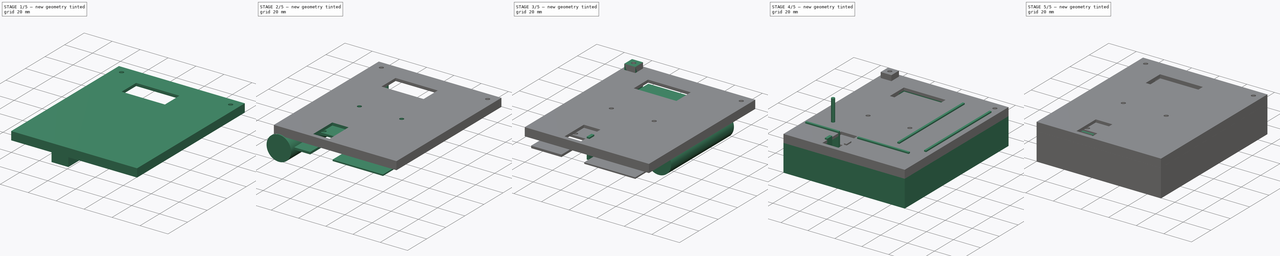
[diagram: build sequence overview — one tinted view per stage of 5, left to right]
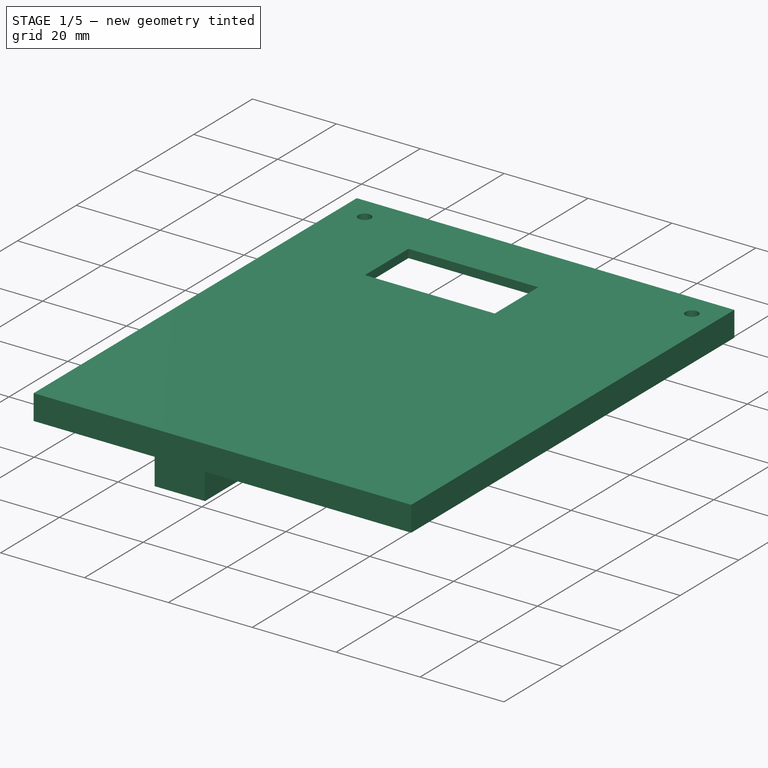
[diagram: stage 1 of 5 — iso view after this stage's code; geometry added in this stage tinted green]
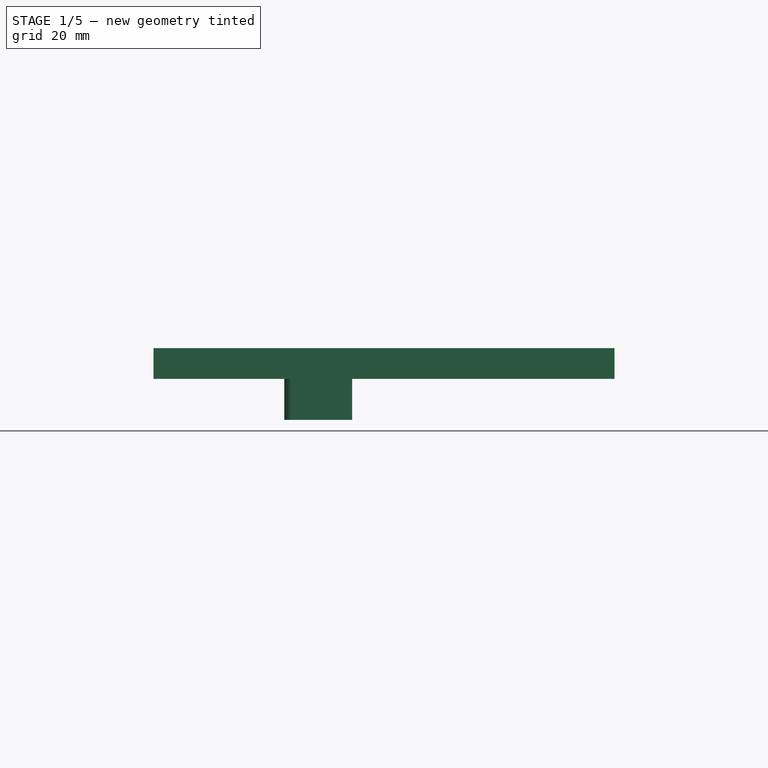
[diagram: stage 1 of 5 — front view after this stage's code; geometry added in this stage tinted green]
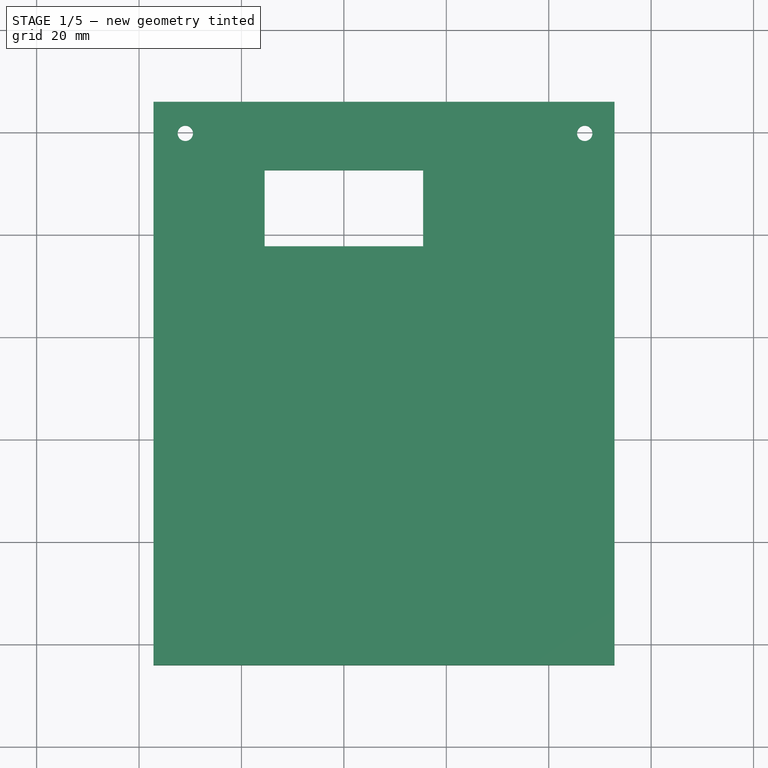
[diagram: stage 1 of 5 — top view after this stage's code; geometry added in this stage tinted green]
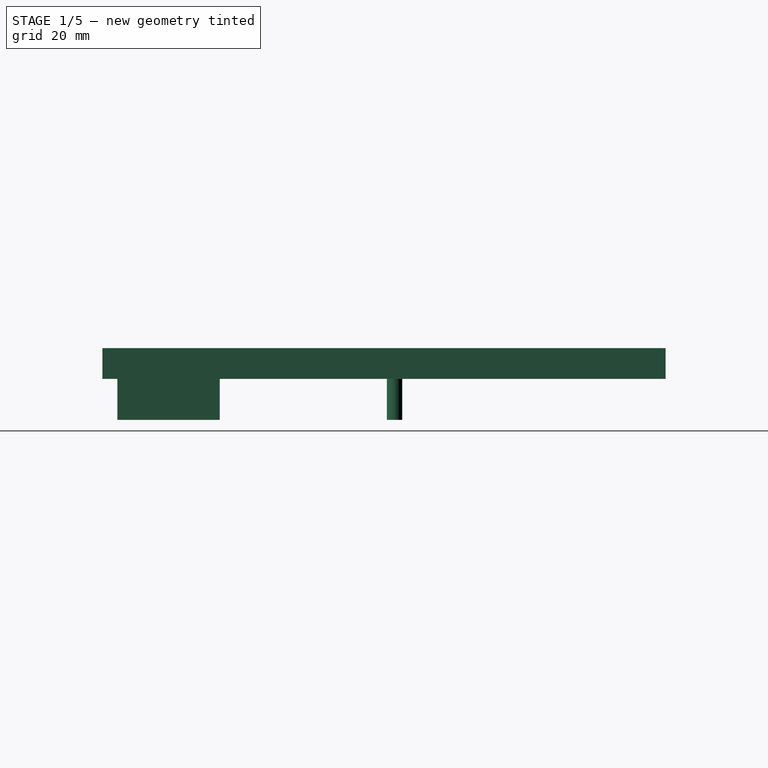
[diagram: stage 1 of 5 — right view after this stage's code; geometry added in this stage tinted green]
FCSTD DOCUMENT  (FreeCAD 0.18R4 (GitTag))
Label: BOX
License: All rights reserved
LicenseURL: http://en.wikipedia.org/wiki/All_rights_reserved
objects: Sketcher::SketchObject×34, PartDesign::Pad×33, PartDesign::Body×33, Part::Cut×17, Part::MultiFuse×4
note: 154 computed .brp shape members not serialized (recipe doc carries the construction recipe); baked Part::Feature solids carry a one-line shape summary decoded from their .brp

FEATURE [Sketcher::SketchObject] Sketch026
  MapMode = 5
  Support = -> [XY_Plane025]
  sketch-geometry (4):
    g0: LineSegment StartX=-37.1654 StartY=45.7931 StartZ=0 EndX=52.8346 EndY=45.7931 EndZ=0
    g1: LineSegment StartX=52.8346 StartY=45.7931 StartZ=0 EndX=52.8346 EndY=-64.2069 EndZ=0
    g2: LineSegment StartX=52.8346 StartY=-64.2069 StartZ=0 EndX=-37.1654 EndY=-64.2069 EndZ=0
    g3: LineSegment StartX=-37.1654 StartY=-64.2069 StartZ=0 EndX=-37.1654 EndY=45.7931 EndZ=0
  constraints (10):
    c: Coincident(g0,g1)
    c: Coincident(g1,g2)
    c: Coincident(g2,g3)
    c: Coincident(g3,g0)
    c: Horizontal(g0)
    c: Horizontal(g2)
    c: Vertical(g1)
    c: Vertical(g3)
    c: DistanceX(g0,g0) = 90
    c: DistanceY(g1,g1) = 110
FEATURE [PartDesign::Pad] Pad025
  Length = 6
  Length2 = 100
  Profile = -> Sketch026
  Type = 0
FEATURE [PartDesign::Body] Body025
  Group = -> [Sketch026,Pad025]
  Origin = -> Origin025
  Placement = pos=(0,0,8) rot=(0,0,1;0rad)
  Tip = -> Pad025
FEATURE [Sketcher::SketchObject] Sketch027
  MapMode = 5
  Support = -> [XY_Plane027]
  sketch-geometry (4):
    g0: LineSegment StartX=-34.9958 StartY=43.7386 StartZ=0 EndX=50.9967 EndY=43.7386 EndZ=0
    g1: LineSegment StartX=50.9967 StartY=43.7386 StartZ=0 EndX=50.9967 EndY=-62.2632 EndZ=0
    g2: LineSegment StartX=50.9967 StartY=-62.2632 StartZ=0 EndX=-34.9958 EndY=-62.2632 EndZ=0
    g3: LineSegment StartX=-34.9958 StartY=-62.2632 StartZ=0 EndX=-34.9958 EndY=43.7386 EndZ=0
  constraints (8):
    c: Coincident(g0,g1)
    c: Coincident(g1,g2)
    c: Coincident(g2,g3)
    c: Coincident(g3,g0)
    c: Horizontal(g0)
    c: Horizontal(g2)
    c: Vertical(g1)
    c: Vertical(g3)
FEATURE [PartDesign::Pad] Pad026
  Length = 4
  Length2 = 100
  Profile = -> Sketch027
  Type = 0
FEATURE [PartDesign::Body] Body027
  Group = -> [Sketch027,Pad026]
  Origin = -> Origin027
  Placement = pos=(0,0,8) rot=(0,0,1;0rad)
  Tip = -> Pad026
FEATURE [Part::Cut] Cut010
  Base = -> Body025
  Tool = -> Body027
FEATURE [Sketcher::SketchObject] Sketch028
  MapMode = 5
  Support = -> [XY_Plane028]
  sketch-geometry (4):
    g0: LineSegment StartX=-15.4676 StartY=32.4065 StartZ=0 EndX=15.4804 EndY=32.4065 EndZ=0
    g1: LineSegment StartX=15.4804 StartY=32.4065 StartZ=0 EndX=15.4804 EndY=17.5822 EndZ=0
    g2: LineSegment StartX=15.4804 StartY=17.5822 StartZ=0 EndX=-15.4676 EndY=17.5822 EndZ=0
    g3: LineSegment StartX=-15.4676 StartY=17.5822 StartZ=0 EndX=-15.4676 EndY=32.4065 EndZ=0
  constraints (8):
    c: Coincident(g0,g1)
    c: Coincident(g1,g2)
    c: Coincident(g2,g3)
    c: Coincident(g3,g0)
    c: Horizontal(g0)
    c: Horizontal(g2)
    c: Vertical(g1)
    c: Vertical(g3)
FEATURE [PartDesign::Pad] Pad027
  Length = 10
  Length2 = 100
  Profile = -> Sketch028
  Type = 0
FEATURE [PartDesign::Body] Body028
  Group = -> [Sketch028,Pad027]
  Origin = -> Origin028
  Placement = pos=(0,0,7) rot=(0,0,1;0rad)
  Tip = -> Pad027
FEATURE [Part::Cut] Cut011
  Base = -> Cut010
  Tool = -> Body028
FEATURE [Sketcher::SketchObject] Sketch029
  MapMode = 5
  Support = -> [XY_Plane029]
  sketch-geometry (1):
    g0: Circle CenterX=-30.9647 CenterY=39.629 CenterZ=0 NormalX=0 NormalY=0 NormalZ=1 AngleXU=0 Radius=1.5
  constraints (1):
    c: Radius(g0) = 1.5
FEATURE [PartDesign::Pad] Pad028
  Length = 10
  Length2 = 100
  Profile = -> Sketch029
  Type = 0
FEATURE [PartDesign::Body] Body029
  Group = -> [Sketch029,Pad028]
  Origin = -> Origin029
  Placement = pos=(78,0,7) rot=(0,0,1;0rad)
  Tip = -> Pad028
FEATURE [Sketcher::SketchObject] Sketch030
  MapMode = 5
  Support = -> [XY_Plane030]
  sketch-geometry (1):
    g0: Circle CenterX=-30.9647 CenterY=39.629 CenterZ=0 NormalX=0 NormalY=0 NormalZ=1 AngleXU=0 Radius=1.5
  constraints (1):
    c: Radius(g0) = 1.5
FEATURE [PartDesign::Pad] Pad029
  Length = 10
  Length2 = 100
  Profile = -> Sketch030
  Type = 0
FEATURE [PartDesign::Body] Body030
  Group = -> [Sketch030,Pad029]
  Origin = -> Origin030
  Placement = pos=(0,0,7) rot=(0,0,1;0rad)
  Tip = -> Pad029
FEATURE [Part::Cut] Cut012
  Base = -> Cut011
  Tool = -> Body029
FEATURE [Part::Cut] Cut013
  Base = -> Cut012
  Tool = -> Body030
FEATURE [Sketcher::SketchObject] Sketch031
  MapMode = 5
  Support = -> [XY_Plane031]
  sketch-geometry (4):
    g0: LineSegment StartX=-10.3775 StartY=-41.2712 StartZ=0 EndX=1.62254 EndY=-41.2712 EndZ=0
    g1: LineSegment StartX=1.62254 StartY=-41.2712 StartZ=0 EndX=1.62254 EndY=-61.2712 EndZ=0
    g2: LineSegment StartX=1.62254 StartY=-61.2712 StartZ=0 EndX=-10.3775 EndY=-61.2712 EndZ=0
    g3: LineSegment StartX=-10.3775 StartY=-61.2712 StartZ=0 EndX=-10.3775 EndY=-41.2712 EndZ=0
  constraints (10):
    c: Coincident(g0,g1)
    c: Coincident(g1,g2)
    c: Coincident(g2,g3)
    c: Coincident(g3,g0)
    c: Horizontal(g0)
    c: Horizontal(g2)
    c: Vertical(g1)
    c: Vertical(g3)
    c: DistanceX(g0,g0) = 12
    c: DistanceY(g1,g1) = 20
FEATURE [PartDesign::Pad] Pad030
  Length = 10
  Length2 = 100
  Profile = -> Sketch031
  Type = 0
FEATURE [Sketcher::SketchObject] Sketch032
  MapMode = 5
  Support = -> [XY_Plane032]
  sketch-geometry (1):
    g0: Circle CenterX=-10.1326 CenterY=-7.13405 CenterZ=0 NormalX=0 NormalY=0 NormalZ=1 AngleXU=0 Radius=1.5
  constraints (1):
    c: Diameter(g0) = 3
FEATURE [PartDesign::Pad] Pad031
  Length = 10
  Length2 = 100
  Profile = -> Sketch032
  Type = 0
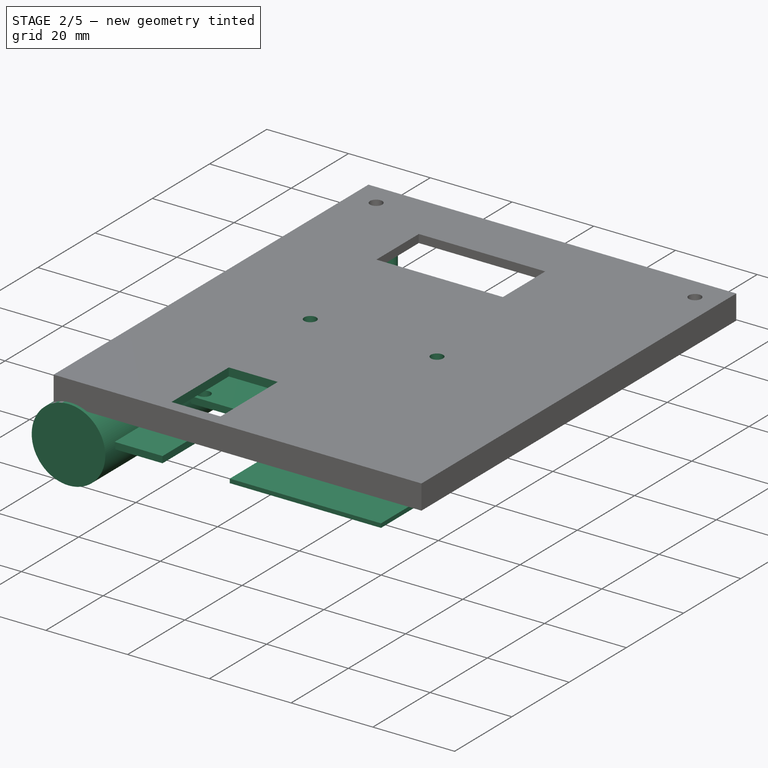
[diagram: stage 2 of 5 — iso view after this stage's code; geometry added in this stage tinted green]
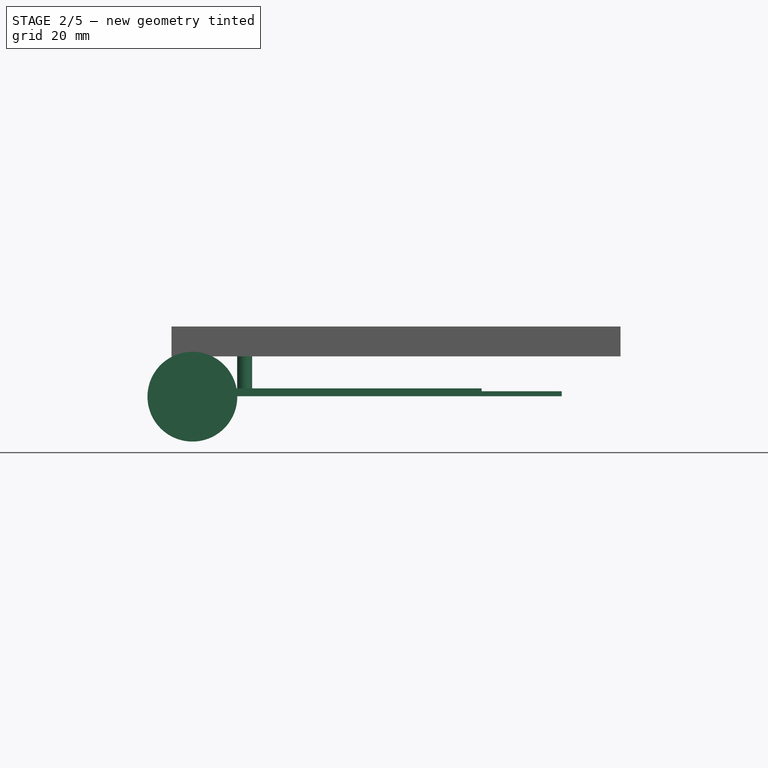
[diagram: stage 2 of 5 — front view after this stage's code; geometry added in this stage tinted green]
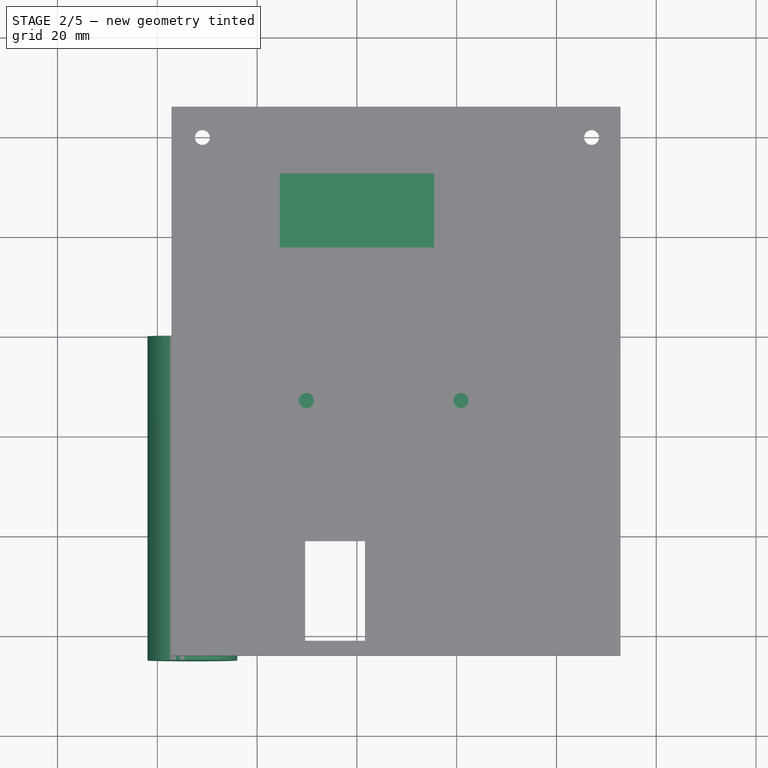
[diagram: stage 2 of 5 — top view after this stage's code; geometry added in this stage tinted green]
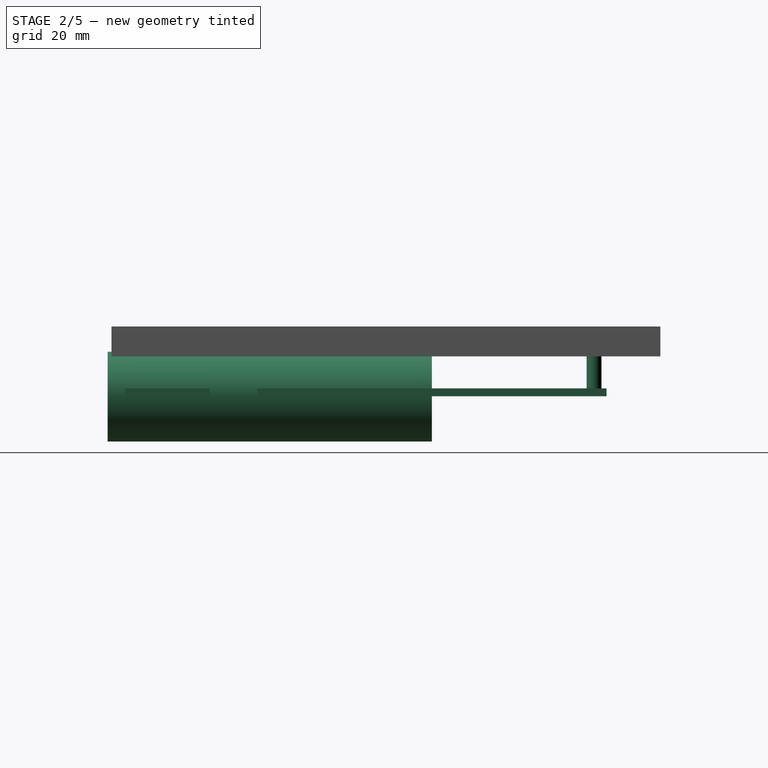
[diagram: stage 2 of 5 — right view after this stage's code; geometry added in this stage tinted green]
FEATURE [Sketcher::SketchObject] Sketch
  MapMode = 5
  Support = -> [XY_Plane]
  sketch-geometry (4):
    g0: LineSegment StartX=-25 StartY=35 StartZ=0 EndX=25 EndY=35 EndZ=0
    g1: LineSegment StartX=25 StartY=35 StartZ=0 EndX=25 EndY=-35 EndZ=0
    g2: LineSegment StartX=25 StartY=-35 StartZ=0 EndX=-25 EndY=-35 EndZ=0
    g3: LineSegment StartX=-25 StartY=-35 StartZ=0 EndX=-25 EndY=35 EndZ=0
  constraints (10):
    c: Coincident(g0,g1)
    c: Coincident(g1,g2)
    c: Coincident(g2,g3)
    c: Coincident(g3,g0)
    c: Horizontal(g2)
    c: Vertical(g3)
    c: DistanceX(g0,g0) = 50
    c: DistanceY(g1,g1) = 70
    c: Symmetric(g0,g0,g-2)
    c: Symmetric(g0,g1,g-1)
FEATURE [PartDesign::Pad] Pad
  Length = 1.6
  Length2 = 100
  Profile = -> Sketch
  Type = 0
FEATURE [PartDesign::Body] Body001  label="7seg"
  Group = -> [Sketch001,Pad001]
  Origin = -> Origin001
  Placement = pos=(0,0,1.6) rot=(0,0,1;0rad)
  Tip = -> Pad001
FEATURE [Sketcher::SketchObject] Sketch002
  MapMode = 5
  Support = -> [XY_Plane002]
  sketch-geometry (1):
    g0: Circle CenterX=-22.5 CenterY=32.5 CenterZ=0 NormalX=0 NormalY=0 NormalZ=1 AngleXU=0 Radius=1.5
  constraints (3):
    c: Diameter(g0) = 3
    c: DistanceX(g0,g-1) = 22.5
    c: DistanceY(g-1,g0) = 32.5
FEATURE [Sketcher::SketchObject] Sketch003
  MapMode = 5
  Support = -> [XY_Plane003]
  sketch-geometry (1):
    g0: Circle CenterX=-22.5 CenterY=32.5 CenterZ=0 NormalX=0 NormalY=0 NormalZ=1 AngleXU=0 Radius=1.5
  constraints (3):
    c: Diameter(g0) = 3
    c: DistanceX(g0,g-1) = 22.5
    c: DistanceY(g-1,g0) = 32.5
FEATURE [Sketcher::SketchObject] Sketch004
  MapMode = 5
  Support = -> [XY_Plane004]
  sketch-geometry (1):
    g0: Circle CenterX=-22.5 CenterY=32.5 CenterZ=0 NormalX=0 NormalY=0 NormalZ=1 AngleXU=0 Radius=1.5
  constraints (3):
    c: Diameter(g0) = 3
    c: DistanceX(g0,g-1) = 22.5
    c: DistanceY(g-1,g0) = 32.5
FEATURE [PartDesign::Pad] Pad002
  Length = 10
  Length2 = 100
  Profile = -> Sketch002
  Type = 0
FEATURE [PartDesign::Body] Body002
  Group = -> [Sketch002,Pad002]
  Origin = -> Origin002
  Placement = pos=(0,-65,0) rot=(0,0,1;0rad)
  Tip = -> Pad002
FEATURE [Sketcher::SketchObject] Sketch005
  MapMode = 5
  Support = -> [XY_Plane005]
  sketch-geometry (1):
    g0: Circle CenterX=-22.5 CenterY=32.5 CenterZ=0 NormalX=0 NormalY=0 NormalZ=1 AngleXU=0 Radius=1.5
  constraints (3):
    c: Diameter(g0) = 3
    c: DistanceX(g0,g-1) = 22.5
    c: DistanceY(g-1,g0) = 32.5
FEATURE [PartDesign::Pad] Pad003
  Length = 10
  Length2 = 100
  Profile = -> Sketch005
  Type = 0
FEATURE [PartDesign::Body] Body004
  Group = -> [Sketch004,Pad005]
  Origin = -> Origin004
  Tip = -> Pad005
FEATURE [Part::Cut] Cut
  Base = -> Body
  Tool = -> Body002
FEATURE [Sketcher::SketchObject] Sketch006
  MapMode = 5
  Placement = pos=(0,0,0) rot=(1,0,0;1.5708rad)
  Support = -> [XZ_Plane006]
  sketch-geometry (1):
    g0: Circle CenterX=-32.9727 CenterY=-0.072947 CenterZ=0 NormalX=0 NormalY=0 NormalZ=1 AngleXU=0 Radius=9
  constraints (1):
    c: Diameter(g0) = 18
FEATURE [PartDesign::Pad] Pad006
  Length = 65
  Length2 = 100
  Placement = pos=(0,0,0) rot=(1,0,0;1.5708rad)
  Profile = -> Sketch006
  Type = 0
FEATURE [PartDesign::Body] Body006  label="18650"
  Group = -> [Sketch006,Pad006]
  Origin = -> Origin006
  Placement = pos=(71,32,0) rot=(0,0,1;0rad)
  Tip = -> Pad006
FEATURE [Sketcher::SketchObject] Sketch007
  MapMode = 5
  Support = -> [XY_Plane007]
  sketch-geometry (4):
    g0: LineSegment StartX=-37.1546 StartY=45.7807 StartZ=0 EndX=52.8454 EndY=45.7807 EndZ=0
    g1: LineSegment StartX=52.8454 StartY=45.7807 StartZ=0 EndX=52.8454 EndY=-64.2193 EndZ=0
    g2: LineSegment StartX=52.8454 StartY=-64.2193 StartZ=0 EndX=-37.1546 EndY=-64.2193 EndZ=0
    g3: LineSegment StartX=-37.1546 StartY=-64.2193 StartZ=0 EndX=-37.1546 EndY=45.7807 EndZ=0
  constraints (10):
    c: Coincident(g0,g1)
    c: Coincident(g1,g2)
    c: Coincident(g2,g3)
    c: Coincident(g3,g0)
    c: Horizontal(g0)
    c: Horizontal(g2)
    c: Vertical(g1)
    c: Vertical(g3)
    c: DistanceY(g1,g1) = 110
    c: DistanceX(g0,g0) = 90
FEATURE [Sketcher::SketchObject] Sketch008
  MapMode = 5
  Support = -> [XY_Plane008]
  sketch-geometry (4):
    g0: LineSegment StartX=-34.3892 StartY=-44.5297 StartZ=0 EndX=-12.3892 EndY=-44.5297 EndZ=0
    g1: LineSegment StartX=-12.3892 StartY=-44.5297 StartZ=0 EndX=-12.3892 EndY=-61.5297 EndZ=0
    g2: LineSegment StartX=-12.3892 StartY=-61.5297 StartZ=0 EndX=-34.3892 EndY=-61.5297 EndZ=0
    g3: LineSegment StartX=-34.3892 StartY=-61.5297 StartZ=0 EndX=-34.3892 EndY=-44.5297 EndZ=0
  constraints (10):
    c: Coincident(g0,g1)
    c: Coincident(g1,g2)
    c: Coincident(g2,g3)
    c: Coincident(g3,g0)
    c: Horizontal(g0)
    c: Horizontal(g2)
    c: Vertical(g1)
    c: Vertical(g3)
    c: DistanceX(g0,g0) = 22
    c: DistanceY(g1,g1) = 17
FEATURE [PartDesign::Pad] Pad007
  Length = 1.6
  Length2 = 100
  Profile = -> Sketch008
  Type = 0
FEATURE [PartDesign::Body] Body008  label="i1"
  Group = -> [Sketch008,Pad007]
  Origin = -> Origin008
  Tip = -> Pad007
FEATURE [Sketcher::SketchObject] Sketch009
  MapMode = 5
  Support = -> [XY_Plane009]
  sketch-geometry (4):
    g0: LineSegment StartX=4.0497 StartY=-44.5219 StartZ=0 EndX=41.0497 EndY=-44.5219 EndZ=0
    g1: LineSegment StartX=41.0497 StartY=-44.5219 StartZ=0 EndX=41.0497 EndY=-61.5219 EndZ=0
    g2: LineSegment StartX=41.0497 StartY=-61.5219 StartZ=0 EndX=4.0497 EndY=-61.5219 EndZ=0
    g3: LineSegment StartX=4.0497 StartY=-61.5219 StartZ=0 EndX=4.0497 EndY=-44.5219 EndZ=0
  constraints (10):
    c: Coincident(g0,g1)
    c: Coincident(g1,g2)
    c: Coincident(g2,g3)
    c: Coincident(g3,g0)
    c: Horizontal(g0)
    c: Horizontal(g2)
    c: Vertical(g1)
    c: Vertical(g3)
    c: DistanceX(g0,g0) = 37
    c: DistanceY(g1,g1) = 17
FEATURE [PartDesign::Pad] Pad008
  Length = 1
  Length2 = 100
  Profile = -> Sketch009
  Type = 0
FEATURE [PartDesign::Body] Body031
  Group = -> [Sketch031,Pad030]
  Origin = -> Origin031
  Placement = pos=(0,0,6) rot=(0,0,1;0rad)
  Tip = -> Pad030
FEATURE [Part::Cut] Cut014
  Base = -> Cut013
  Tool = -> Body031
FEATURE [PartDesign::Body] Body032
  Group = -> [Sketch032,Pad031]
  Origin = -> Origin032
  Placement = pos=(0,-6,6) rot=(0,0,1;0rad)
  Tip = -> Pad031
FEATURE [Sketcher::SketchObject] Sketch033
  MapMode = 5
  Support = -> [XY_Plane033]
  sketch-geometry (1):
    g0: Circle CenterX=-10.1326 CenterY=-7.13405 CenterZ=0 NormalX=0 NormalY=0 NormalZ=1 AngleXU=0 Radius=1.5
  constraints (1):
    c: Diameter(g0) = 3
FEATURE [PartDesign::Pad] Pad032
  Length = 10
  Length2 = 100
  Profile = -> Sketch033
  Type = 0
FEATURE [PartDesign::Body] Body033
  Group = -> [Sketch033,Pad032]
  Origin = -> Origin033
  Placement = pos=(31,-6,6) rot=(0,0,1;0rad)
  Tip = -> Pad032
FEATURE [Part::Cut] Cut015
  Base = -> Cut014
  Tool = -> Body032
FEATURE [Part::Cut] Cut016
  Base = -> Cut015
  Tool = -> Body033
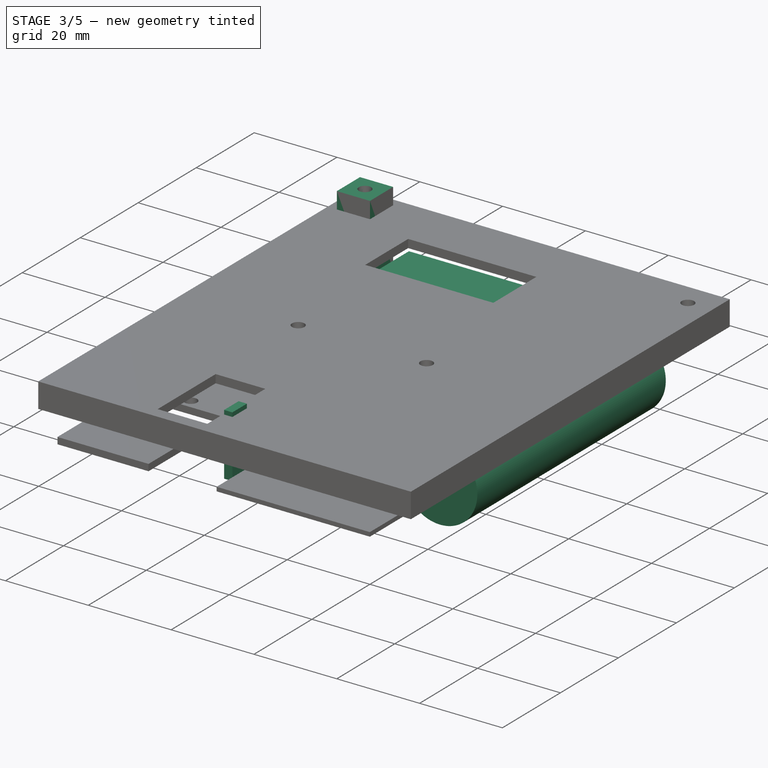
[diagram: stage 3 of 5 — iso view after this stage's code; geometry added in this stage tinted green]
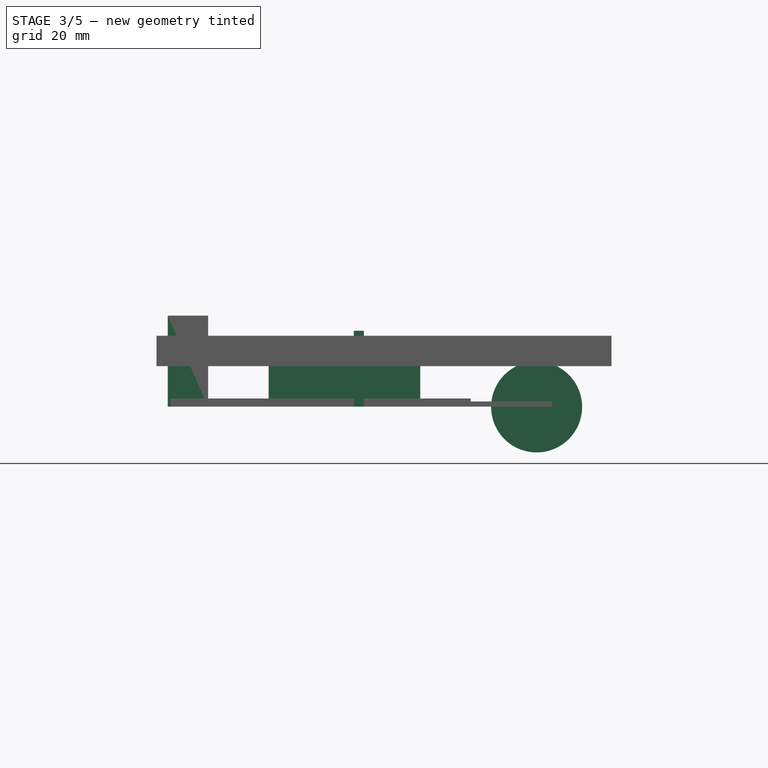
[diagram: stage 3 of 5 — front view after this stage's code; geometry added in this stage tinted green]
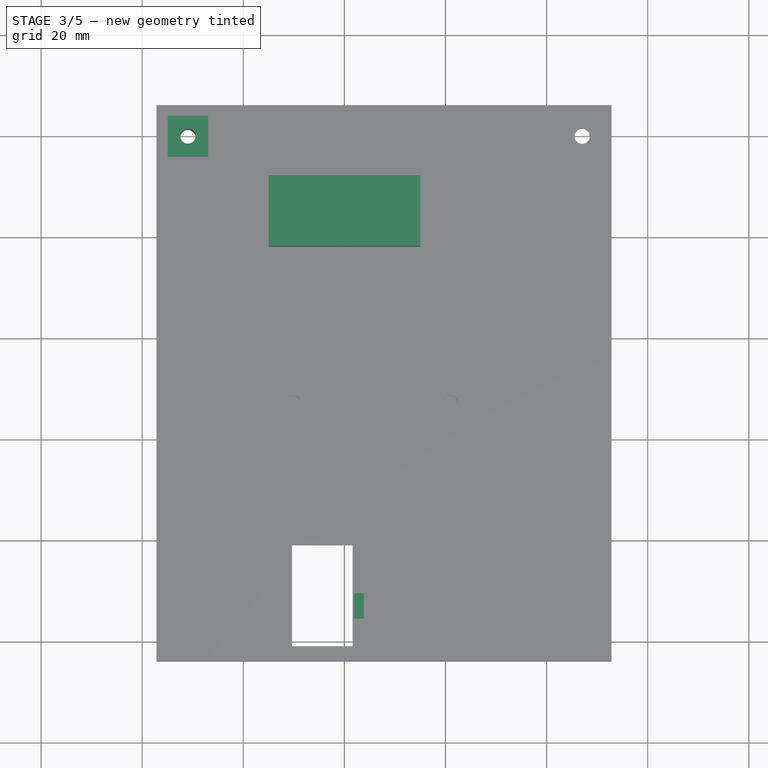
[diagram: stage 3 of 5 — top view after this stage's code; geometry added in this stage tinted green]
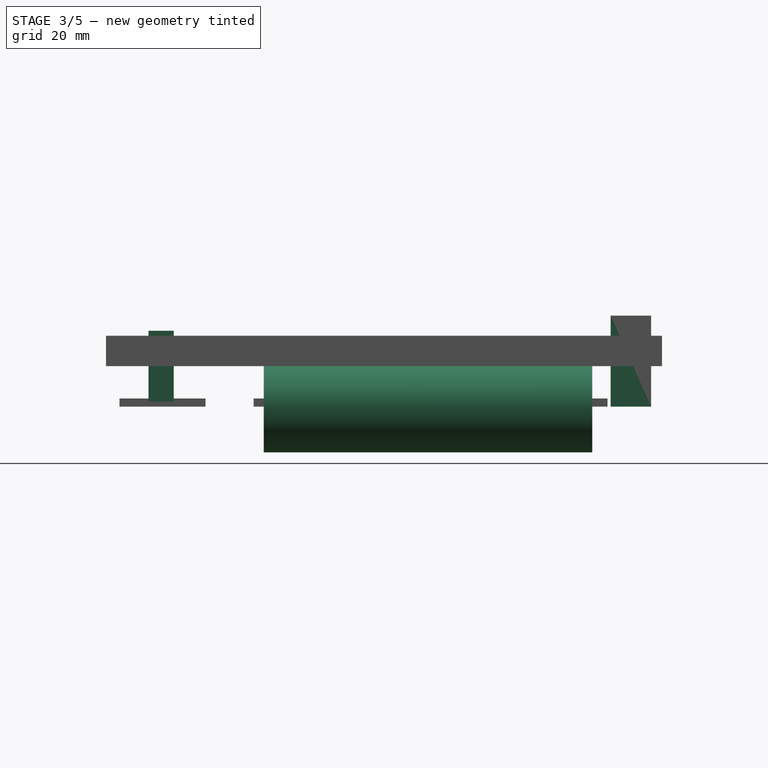
[diagram: stage 3 of 5 — right view after this stage's code; geometry added in this stage tinted green]
FEATURE [PartDesign::Body] Body  label="PCB"
  Group = -> [Sketch,Pad]
  Origin = -> Origin
  Tip = -> Pad
FEATURE [Sketcher::SketchObject] Sketch001
  MapMode = 5
  Support = -> [XY_Plane001]
  sketch-geometry (4):
    g0: LineSegment StartX=-15 StartY=32 StartZ=0 EndX=15 EndY=32 EndZ=0
    g1: LineSegment StartX=15 StartY=32 StartZ=0 EndX=15 EndY=18 EndZ=0
    g2: LineSegment StartX=15 StartY=18 StartZ=0 EndX=-15 EndY=18 EndZ=0
    g3: LineSegment StartX=-15 StartY=18 StartZ=0 EndX=-15 EndY=32 EndZ=0
  constraints (11):
    c: Coincident(g0,g1)
    c: Coincident(g1,g2)
    c: Coincident(g2,g3)
    c: Coincident(g3,g0)
    c: Horizontal(g2)
    c: Vertical(g1)
    c: Vertical(g3)
    c: DistanceX(g0,g0) = 30
    c: DistanceY(g1,g1) = 14
    c: Symmetric(g0,g0,g-2)
    c: DistanceY(g-1,g1) = 18
FEATURE [PartDesign::Pad] Pad001
  Length = 10
  Length2 = 100
  Profile = -> Sketch001
  Type = 0
FEATURE [PartDesign::Body] Body005
  Group = -> [Sketch005,Pad003]
  Origin = -> Origin005
  Placement = pos=(45,-65,0) rot=(0,0,1;0rad)
  Tip = -> Pad003
FEATURE [PartDesign::Pad] Pad004
  Length = 10
  Length2 = 100
  Profile = -> Sketch003
  Type = 0
FEATURE [PartDesign::Body] Body003
  Group = -> [Sketch003,Pad004]
  Origin = -> Origin003
  Placement = pos=(45,0,0) rot=(0,0,1;0rad)
  Tip = -> Pad004
FEATURE [PartDesign::Pad] Pad005
  Length = 10
  Length2 = 100
  Profile = -> Sketch004
  Type = 0
FEATURE [Part::Cut] Cut001
  Base = -> Cut
  Tool = -> Body005
FEATURE [Part::Cut] Cut002
  Base = -> Cut001
  Tool = -> Body004
FEATURE [Part::Cut] Cut003  label="PCBH"
  Base = -> Cut002
  Tool = -> Body003
FEATURE [PartDesign::Body] Body019
  Group = -> [Sketch020,Pad019]
  Origin = -> Origin019
  Placement = pos=(0,0,-10) rot=(0,0,1;0rad)
  Tip = -> Pad019
FEATURE [Sketcher::SketchObject] Sketch021
  MapMode = 5
  Support = -> [XY_Plane020]
  sketch-geometry (4):
    g0: LineSegment StartX=1.84609 StartY=-50.8047 StartZ=0 EndX=3.84609 EndY=-50.8047 EndZ=0
    g1: LineSegment StartX=3.84609 StartY=-50.8047 StartZ=0 EndX=3.84609 EndY=-55.8047 EndZ=0
    g2: LineSegment StartX=3.84609 StartY=-55.8047 StartZ=0 EndX=1.84609 EndY=-55.8047 EndZ=0
    g3: LineSegment StartX=1.84609 StartY=-55.8047 StartZ=0 EndX=1.84609 EndY=-50.8047 EndZ=0
  constraints (10):
    c: Coincident(g0,g1)
    c: Coincident(g1,g2)
    c: Coincident(g2,g3)
    c: Coincident(g3,g0)
    c: Horizontal(g0)
    c: Horizontal(g2)
    c: Vertical(g1)
    c: Vertical(g3)
    c: DistanceY(g1,g1) = 5
    c: DistanceX(g0,g0) = 2
FEATURE [PartDesign::Pad] Pad020
  Length = 15
  Length2 = 100
  Profile = -> Sketch021
  Type = 0
FEATURE [Sketcher::SketchObject] Sketch024
  MapMode = 5
  Support = -> [XY_Plane023]
  sketch-geometry (5):
    g0: Circle CenterX=-30.9518 CenterY=39.627 CenterZ=0 NormalX=0 NormalY=0 NormalZ=1 AngleXU=0 Radius=1.5
    g1: LineSegment StartX=-34.9518 StartY=43.627 StartZ=0 EndX=-26.9518 EndY=43.627 EndZ=0
    g2: LineSegment StartX=-26.9518 StartY=43.627 StartZ=0 EndX=-26.9518 EndY=35.627 EndZ=0
    g3: LineSegment StartX=-26.9518 StartY=35.627 StartZ=0 EndX=-34.9518 EndY=35.627 EndZ=0
    g4: LineSegment StartX=-34.9518 StartY=35.627 StartZ=0 EndX=-34.9518 EndY=43.627 EndZ=0
  constraints (13):
    c: Diameter(g0) = 3
    c: Coincident(g1,g2)
    c: Coincident(g2,g3)
    c: Coincident(g3,g4)
    c: Coincident(g4,g1)
    c: Horizontal(g1)
    c: Horizontal(g3)
    c: Vertical(g2)
    c: Vertical(g4)
    c: DistanceY(g2,g2) = 8
    c: DistanceX(g1,g1) = 8
    c: Distance(g0,g1) = 4
    c: Distance(g0,g2) = 4
FEATURE [PartDesign::Pad] Pad023
  Length = 18
  Length2 = 100
  Profile = -> Sketch024
  Type = 0
FEATURE [PartDesign::Body] Body023
  Group = -> [Sketch024,Pad023]
  Origin = -> Origin023
  Placement = pos=(0,0,-10) rot=(0,0,1;0rad)
  Tip = -> Pad023
FEATURE [Sketcher::SketchObject] Sketch025
  MapMode = 5
  Support = -> [XY_Plane024]
  sketch-geometry (5):
    g0: Circle CenterX=-30.9518 CenterY=39.627 CenterZ=0 NormalX=0 NormalY=0 NormalZ=1 AngleXU=0 Radius=1.5
    g1: LineSegment StartX=-34.9518 StartY=43.627 StartZ=0 EndX=-26.9518 EndY=43.627 EndZ=0
    g2: LineSegment StartX=-26.9518 StartY=43.627 StartZ=0 EndX=-26.9518 EndY=35.627 EndZ=0
    g3: LineSegment StartX=-26.9518 StartY=35.627 StartZ=0 EndX=-34.9518 EndY=35.627 EndZ=0
    g4: LineSegment StartX=-34.9518 StartY=35.627 StartZ=0 EndX=-34.9518 EndY=43.627 EndZ=0
  constraints (13):
    c: Diameter(g0) = 3
    c: Coincident(g1,g2)
    c: Coincident(g2,g3)
    c: Coincident(g3,g4)
    c: Coincident(g4,g1)
    c: Horizontal(g1)
    c: Horizontal(g3)
    c: Vertical(g2)
    c: Vertical(g4)
    c: DistanceY(g2,g2) = 8
    c: DistanceX(g1,g1) = 8
    c: Distance(g0,g1) = 4
    c: Distance(g0,g2) = 4
FEATURE [PartDesign::Pad] Pad024
  Length = 18
  Length2 = 100
  Profile = -> Sketch025
  Type = 0
FEATURE [Part::MultiFuse] Fusion003  label="componenti"
  Shapes = -> [Body001,Body008,Body009,Body006,Cut003]
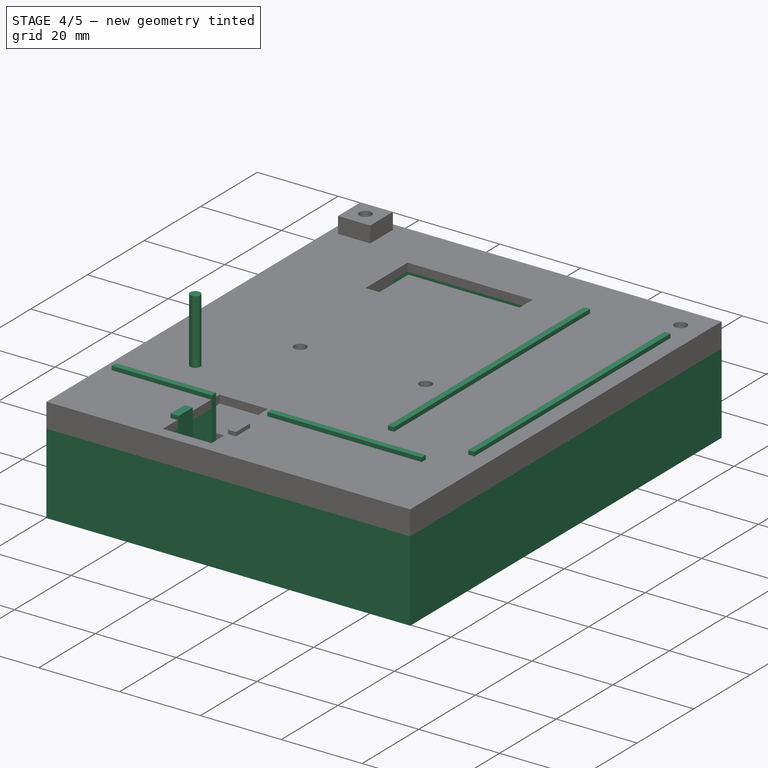
[diagram: stage 4 of 5 — iso view after this stage's code; geometry added in this stage tinted green]
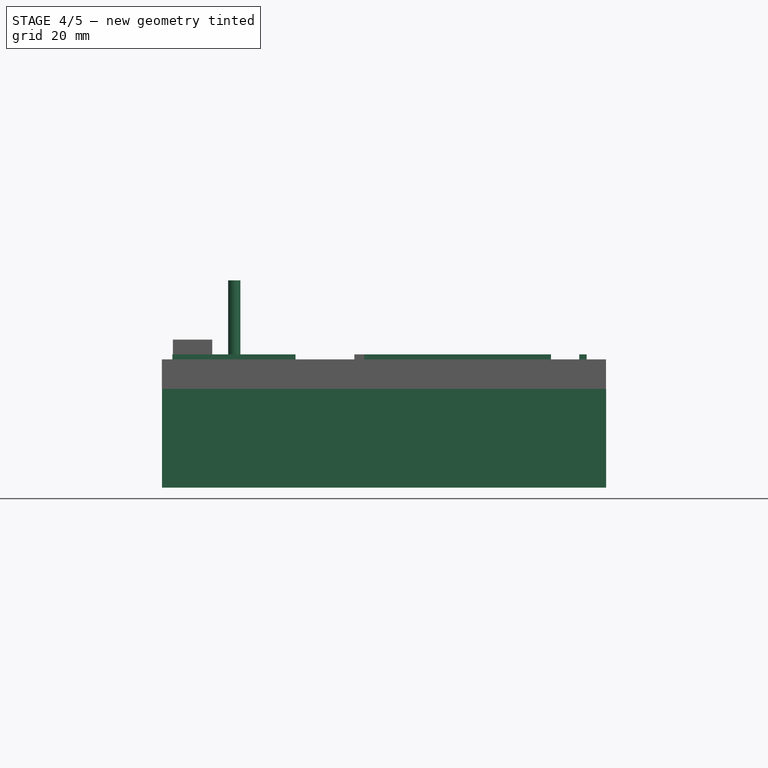
[diagram: stage 4 of 5 — front view after this stage's code; geometry added in this stage tinted green]
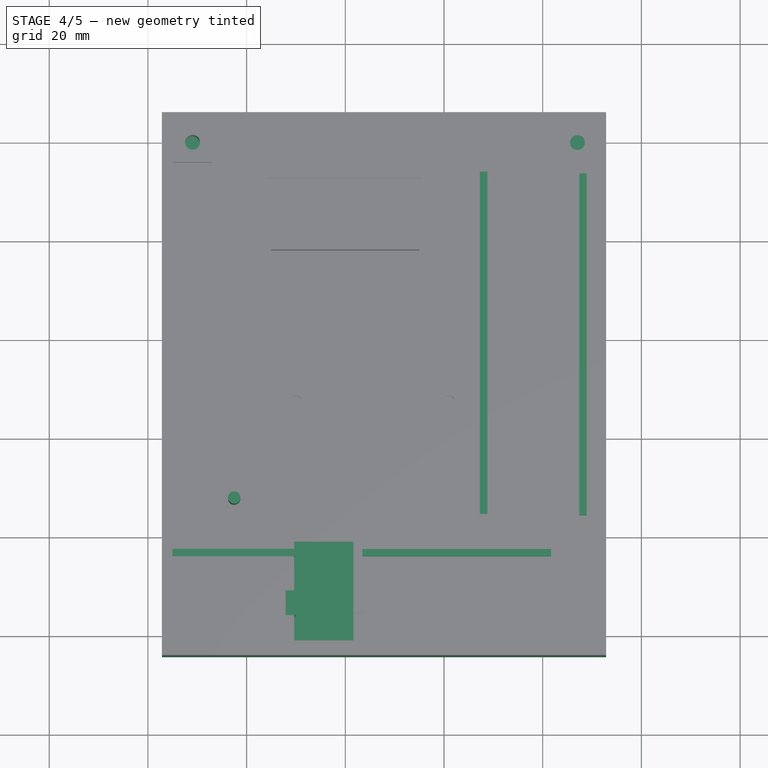
[diagram: stage 4 of 5 — top view after this stage's code; geometry added in this stage tinted green]
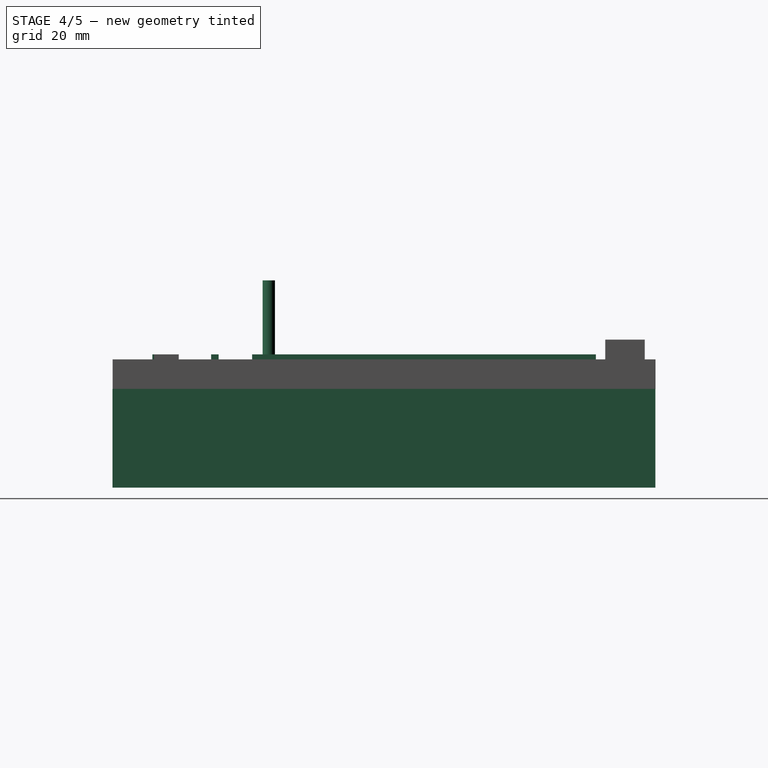
[diagram: stage 4 of 5 — right view after this stage's code; geometry added in this stage tinted green]
FEATURE [PartDesign::Body] Body009  label="i2"
  Group = -> [Sketch009,Pad008]
  Origin = -> Origin009
  Tip = -> Pad008
FEATURE [PartDesign::Pad] Pad009
  Length = 20
  Length2 = 100
  Profile = -> Sketch007
  Type = 0
FEATURE [PartDesign::Body] Body007  label="scatola"
  Group = -> [Sketch007,Pad009]
  Origin = -> Origin007
  Placement = pos=(0,0,-12) rot=(0,0,1;0rad)
  Tip = -> Pad009
FEATURE [Sketcher::SketchObject] Sketch010
  MapMode = 5
  Support = -> [XY_Plane010]
  sketch-geometry (4):
    g0: LineSegment StartX=-34.9979 StartY=43.7382 StartZ=0 EndX=51.0021 EndY=43.7382 EndZ=0
    g1: LineSegment StartX=51.0021 StartY=43.7382 StartZ=0 EndX=51.0021 EndY=-62.2618 EndZ=0
    g2: LineSegment StartX=51.0021 StartY=-62.2618 StartZ=0 EndX=-34.9979 EndY=-62.2618 EndZ=0
    g3: LineSegment StartX=-34.9979 StartY=-62.2618 StartZ=0 EndX=-34.9979 EndY=43.7382 EndZ=0
  constraints (10):
    c: Coincident(g0,g1)
    c: Coincident(g1,g2)
    c: Coincident(g2,g3)
    c: Coincident(g3,g0)
    c: Horizontal(g0)
    c: Horizontal(g2)
    c: Vertical(g1)
    c: Vertical(g3)
    c: DistanceX(g0,g0) = 86
    c: DistanceY(g1,g1) = 106
FEATURE [PartDesign::Pad] Pad010
  Length = 18
  Length2 = 100
  Profile = -> Sketch010
  Type = 0
FEATURE [PartDesign::Body] Body010
  Group = -> [Sketch010,Pad010]
  Origin = -> Origin010
  Placement = pos=(0,0,-10) rot=(0,0,1;0rad)
  Tip = -> Pad010
FEATURE [Part::Cut] Cut004  label="box"
  Base = -> Body007
  Tool = -> Body010
FEATURE [Sketcher::SketchObject] Sketch011
  MapMode = 5
  Support = -> [XY_Plane011]
  sketch-geometry (1):
    g0: Circle CenterX=-22.5075 CenterY=-32.5575 CenterZ=0 NormalX=0 NormalY=0 NormalZ=1 AngleXU=0 Radius=1.25
  constraints (1):
    c: Diameter(g0) = 2.5
FEATURE [PartDesign::Pad] Pad011
  Length = 30
  Length2 = 100
  Profile = -> Sketch011
  Type = 0
FEATURE [PartDesign::Body] Body013
  Group = -> [Sketch013,Pad013]
  Origin = -> Origin013
  Placement = pos=(0,0,-17) rot=(0,0,1;0rad)
  Tip = -> Pad013
FEATURE [Sketcher::SketchObject] Sketch014
  MapMode = 5
  Support = -> [XY_Plane014]
  sketch-geometry (1):
    g0: Circle CenterX=-22.5075 CenterY=-32.5575 CenterZ=0 NormalX=0 NormalY=0 NormalZ=1 AngleXU=0 Radius=1.25
  constraints (1):
    c: Diameter(g0) = 2.5
FEATURE [PartDesign::Pad] Pad014
  Length = 30
  Length2 = 100
  Profile = -> Sketch014
  Type = 0
FEATURE [PartDesign::Body] Body014
  Group = -> [Sketch014,Pad014]
  Origin = -> Origin014
  Placement = pos=(45,0,-17) rot=(0,0,1;0rad)
  Tip = -> Pad014
FEATURE [Part::Cut] Cut005
  Base = -> Cut004
  Tool = -> Body011
FEATURE [Sketcher::SketchObject] Sketch015
  MapMode = 5
  Support = -> [XY_Plane015]
  sketch-geometry (4):
    g0: LineSegment StartX=27.2788 StartY=33.7204 StartZ=0 EndX=28.7788 EndY=33.7204 EndZ=0
    g1: LineSegment StartX=28.7788 StartY=33.7204 StartZ=0 EndX=28.7788 EndY=-35.5992 EndZ=0
    g2: LineSegment StartX=28.7788 StartY=-35.5992 StartZ=0 EndX=27.2788 EndY=-35.5992 EndZ=0
    g3: LineSegment StartX=27.2788 StartY=-35.5992 StartZ=0 EndX=27.2788 EndY=33.7204 EndZ=0
  constraints (9):
    c: Coincident(g0,g1)
    c: Coincident(g1,g2)
    c: Coincident(g2,g3)
    c: Coincident(g3,g0)
    c: Horizontal(g0)
    c: Horizontal(g2)
    c: Vertical(g1)
    c: Vertical(g3)
    c: DistanceX(g0,g0) = 1.5
FEATURE [PartDesign::Pad] Pad015
  Length = 15
  Length2 = 100
  Profile = -> Sketch015
  Type = 0
FEATURE [Sketcher::SketchObject] Sketch016
  MapMode = 5
  Support = -> [XY_Plane016]
  sketch-geometry (4):
    g0: LineSegment StartX=47.3972 StartY=33.3718 StartZ=0 EndX=48.8972 EndY=33.3718 EndZ=0
    g1: LineSegment StartX=48.8972 StartY=33.3718 StartZ=0 EndX=48.8972 EndY=-35.9478 EndZ=0
    g2: LineSegment StartX=48.8972 StartY=-35.9478 StartZ=0 EndX=47.3972 EndY=-35.9478 EndZ=0
    g3: LineSegment StartX=47.3972 StartY=-35.9478 StartZ=0 EndX=47.3972 EndY=33.3718 EndZ=0
  constraints (9):
    c: Coincident(g0,g1)
    c: Coincident(g1,g2)
    c: Coincident(g2,g3)
    c: Coincident(g3,g0)
    c: Horizontal(g0)
    c: Horizontal(g2)
    c: Vertical(g1)
    c: Vertical(g3)
    c: DistanceX(g0,g0) = 1.5
FEATURE [PartDesign::Pad] Pad016
  Length = 15
  Length2 = 100
  Profile = -> Sketch016
  Type = 0
FEATURE [PartDesign::Body] Body016
  Group = -> [Sketch016,Pad016]
  Origin = -> Origin016
  Placement = pos=(0,0,-10) rot=(0,0,1;0rad)
  Tip = -> Pad016
FEATURE [Sketcher::SketchObject] Sketch017
  MapMode = 5
  Support = -> [XY_Plane015]
FEATURE [PartDesign::Body] Body015
  Group = -> [Sketch015,Pad015,Sketch017]
  Origin = -> Origin015
  Placement = pos=(0,0,-10) rot=(0,0,1;0rad)
  Tip = -> Pad015
FEATURE [Sketcher::SketchObject] Sketch018
  MapMode = 5
  Support = -> [XY_Plane017]
  sketch-geometry (4):
    g0: LineSegment StartX=-35.0402 StartY=-42.7226 StartZ=0 EndX=-10.2399 EndY=-42.7226 EndZ=0
    g1: LineSegment StartX=-10.2399 StartY=-42.7226 StartZ=0 EndX=-10.2399 EndY=-44.2226 EndZ=0
    g2: LineSegment StartX=-10.2399 StartY=-44.2226 StartZ=0 EndX=-35.0402 EndY=-44.2226 EndZ=0
    g3: LineSegment StartX=-35.0402 StartY=-44.2226 StartZ=0 EndX=-35.0402 EndY=-42.7226 EndZ=0
  constraints (9):
    c: Coincident(g0,g1)
    c: Coincident(g1,g2)
    c: Coincident(g2,g3)
    c: Coincident(g3,g0)
    c: Horizontal(g0)
    c: Horizontal(g2)
    c: Vertical(g1)
    c: Vertical(g3)
    c: DistanceY(g1,g1) = 1.5
FEATURE [PartDesign::Pad] Pad017
  Length = 15
  Length2 = 100
  Profile = -> Sketch018
  Type = 0
FEATURE [PartDesign::Body] Body017
  Group = -> [Sketch018,Pad017]
  Origin = -> Origin017
  Placement = pos=(0,0,-10) rot=(0,0,1;0rad)
  Tip = -> Pad017
FEATURE [Sketcher::SketchObject] Sketch019
  MapMode = 5
  Support = -> [XY_Plane018]
  sketch-geometry (4):
    g0: LineSegment StartX=3.49492 StartY=-42.7535 StartZ=0 EndX=41.6874 EndY=-42.7535 EndZ=0
    g1: LineSegment StartX=41.6874 StartY=-42.7535 StartZ=0 EndX=41.6874 EndY=-44.2535 EndZ=0
    g2: LineSegment StartX=41.6874 StartY=-44.2535 StartZ=0 EndX=3.49492 EndY=-44.2535 EndZ=0
    g3: LineSegment StartX=3.49492 StartY=-44.2535 StartZ=0 EndX=3.49492 EndY=-42.7535 EndZ=0
  constraints (9):
    c: Coincident(g0,g1)
    c: Coincident(g1,g2)
    c: Coincident(g2,g3)
    c: Coincident(g3,g0)
    c: Horizontal(g0)
    c: Horizontal(g2)
    c: Vertical(g1)
    c: Vertical(g3)
    c: DistanceY(g1,g1) = 1.5
FEATURE [PartDesign::Pad] Pad018
  Length = 15
  Length2 = 100
  Profile = -> Sketch019
  Type = 0
FEATURE [PartDesign::Body] Body018
  Group = -> [Sketch019,Pad018]
  Origin = -> Origin018
  Placement = pos=(0,0,-10) rot=(0,0,1;0rad)
  Tip = -> Pad018
FEATURE [Sketcher::SketchObject] Sketch020
  MapMode = 5
  Support = -> [XY_Plane019]
  sketch-geometry (4):
    g0: LineSegment StartX=-12.0974 StartY=-51.1533 StartZ=0 EndX=-10.0974 EndY=-51.1533 EndZ=0
    g1: LineSegment StartX=-10.0974 StartY=-51.1533 StartZ=0 EndX=-10.0974 EndY=-56.1533 EndZ=0
    g2: LineSegment StartX=-10.0974 StartY=-56.1533 StartZ=0 EndX=-12.0974 EndY=-56.1533 EndZ=0
    g3: LineSegment StartX=-12.0974 StartY=-56.1533 StartZ=0 EndX=-12.0974 EndY=-51.1533 EndZ=0
  constraints (10):
    c: Coincident(g0,g1)
    c: Coincident(g1,g2)
    c: Coincident(g2,g3)
    c: Coincident(g3,g0)
    c: Horizontal(g0)
    c: Horizontal(g2)
    c: Vertical(g1)
    c: Vertical(g3)
    c: DistanceY(g1,g1) = 5
    c: DistanceX(g0,g0) = 2
FEATURE [PartDesign::Pad] Pad019
  Length = 15
  Length2 = 100
  Profile = -> Sketch020
  Type = 0
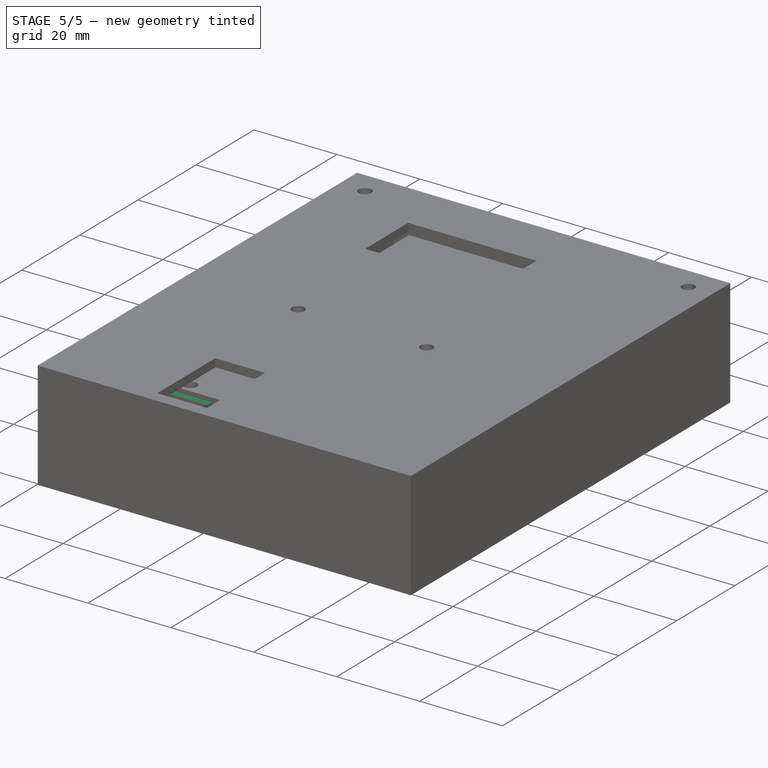
[diagram: stage 5 of 5 — iso view after this stage's code; geometry added in this stage tinted green]
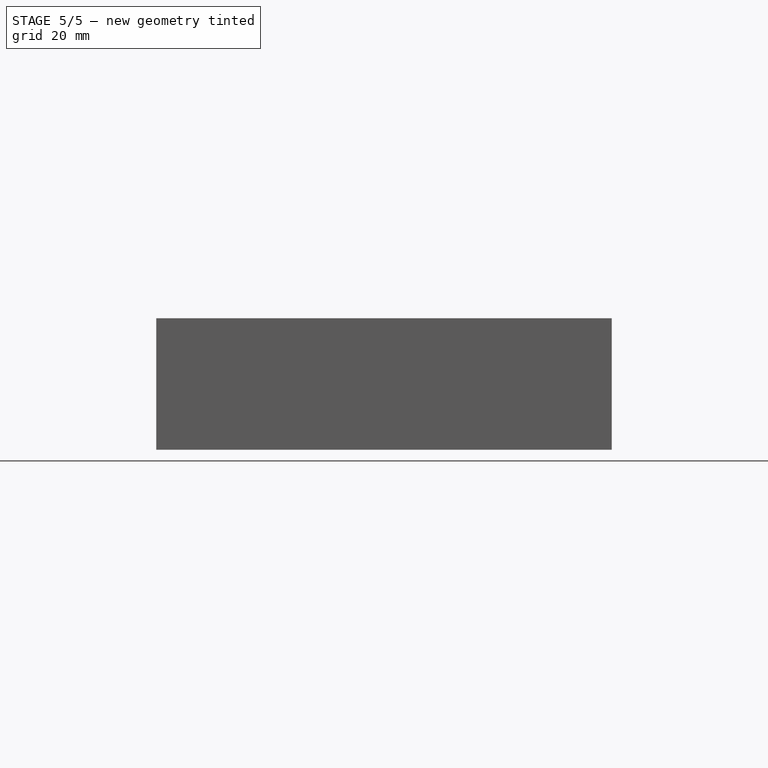
[diagram: stage 5 of 5 — front view after this stage's code; geometry added in this stage tinted green]
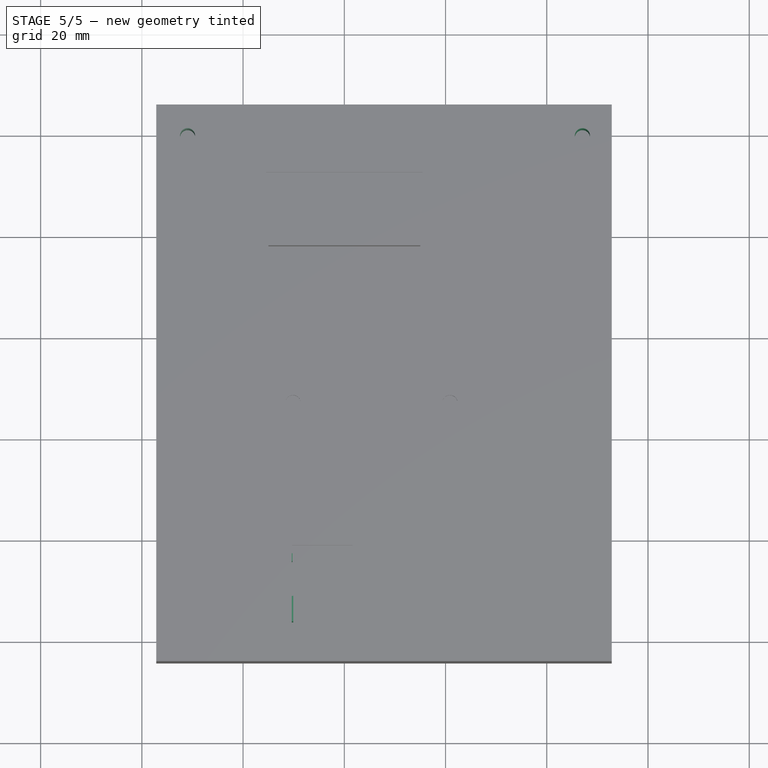
[diagram: stage 5 of 5 — top view after this stage's code; geometry added in this stage tinted green]
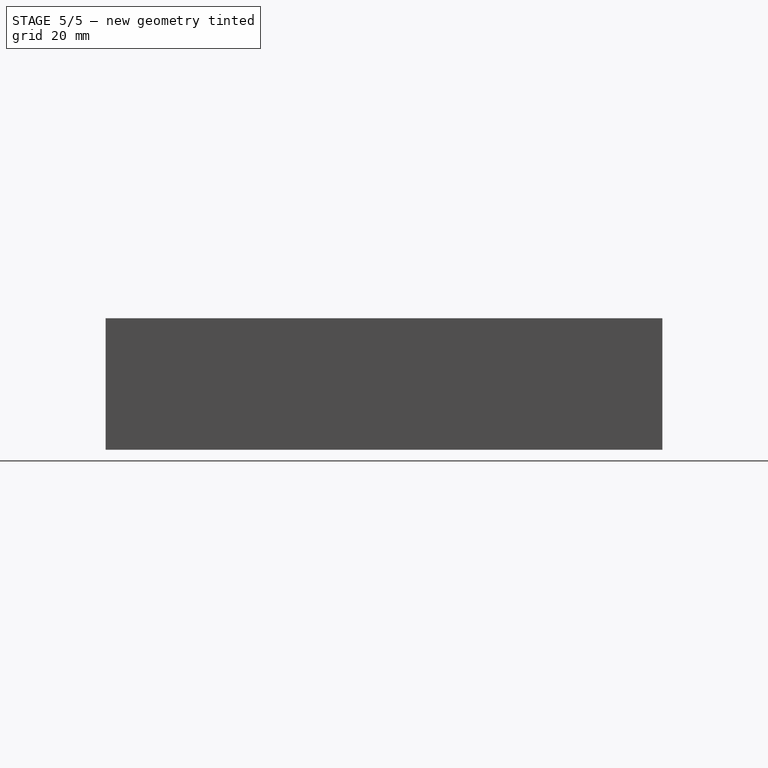
[diagram: stage 5 of 5 — right view after this stage's code; geometry added in this stage tinted green]
FEATURE [PartDesign::Body] Body011
  Group = -> [Sketch011,Pad011]
  Origin = -> Origin011
  Placement = pos=(0,65,-17) rot=(0,0,1;0rad)
  Tip = -> Pad011
FEATURE [Sketcher::SketchObject] Sketch012
  MapMode = 5
  Support = -> [XY_Plane012]
  sketch-geometry (1):
    g0: Circle CenterX=-22.5075 CenterY=-32.5575 CenterZ=0 NormalX=0 NormalY=0 NormalZ=1 AngleXU=0 Radius=1.25
  constraints (1):
    c: Diameter(g0) = 2.5
FEATURE [PartDesign::Pad] Pad012
  Length = 30
  Length2 = 100
  Profile = -> Sketch012
  Type = 0
FEATURE [PartDesign::Body] Body012
  Group = -> [Sketch012,Pad012]
  Origin = -> Origin012
  Placement = pos=(45,65,-17) rot=(0,0,1;0rad)
  Tip = -> Pad012
FEATURE [Sketcher::SketchObject] Sketch013
  MapMode = 5
  Support = -> [XY_Plane013]
  sketch-geometry (1):
    g0: Circle CenterX=-22.5075 CenterY=-32.5575 CenterZ=0 NormalX=0 NormalY=0 NormalZ=1 AngleXU=0 Radius=1.25
  constraints (1):
    c: Diameter(g0) = 2.5
FEATURE [PartDesign::Pad] Pad013
  Length = 30
  Length2 = 100
  Profile = -> Sketch013
  Type = 0
FEATURE [Part::Cut] Cut006
  Base = -> Cut005
  Tool = -> Body014
FEATURE [Part::Cut] Cut007
  Base = -> Cut006
  Tool = -> Body013
FEATURE [Part::Cut] Cut008
  Base = -> Cut007
  Tool = -> Body012
FEATURE [PartDesign::Body] Body020
  Group = -> [Sketch021,Pad020]
  Origin = -> Origin020
  Placement = pos=(0,0,-10) rot=(0,0,1;0rad)
  Tip = -> Pad020
FEATURE [Sketcher::SketchObject] Sketch022
  MapMode = 5
  Support = -> [XY_Plane021]
  sketch-geometry (4):
    g0: LineSegment StartX=41.2364 StartY=-50.8047 StartZ=0 EndX=43.2364 EndY=-50.8047 EndZ=0
    g1: LineSegment StartX=43.2364 StartY=-50.8047 StartZ=0 EndX=43.2364 EndY=-55.8047 EndZ=0
    g2: LineSegment StartX=43.2364 StartY=-55.8047 StartZ=0 EndX=41.2364 EndY=-55.8047 EndZ=0
    g3: LineSegment StartX=41.2364 StartY=-55.8047 StartZ=0 EndX=41.2364 EndY=-50.8047 EndZ=0
  constraints (10):
    c: Coincident(g0,g1)
    c: Coincident(g1,g2)
    c: Coincident(g2,g3)
    c: Coincident(g3,g0)
    c: Horizontal(g0)
    c: Horizontal(g2)
    c: Vertical(g1)
    c: Vertical(g3)
    c: DistanceY(g1,g1) = 5
    c: DistanceX(g0,g0) = 2
FEATURE [PartDesign::Pad] Pad021
  Length = 15
  Length2 = 100
  Profile = -> Sketch022
  Type = 0
FEATURE [PartDesign::Body] Body021
  Group = -> [Sketch022,Pad021]
  Origin = -> Origin021
  Placement = pos=(0,0,-10) rot=(0,0,1;0rad)
  Tip = -> Pad021
FEATURE [Sketcher::SketchObject] Sketch023
  MapMode = 5
  Placement = pos=(0,0,0) rot=(0.57735,0.57735,0.57735;2.0944rad)
  Support = -> [YZ_Plane022]
  sketch-geometry (4):
    g0: LineSegment StartX=-46.8376 StartY=-2.30965 StartZ=0 EndX=-58.8376 EndY=-2.30965 EndZ=0
    g1: LineSegment StartX=-58.8376 StartY=-2.30965 StartZ=0 EndX=-58.8376 EndY=-9.30965 EndZ=0
    g2: LineSegment StartX=-58.8376 StartY=-9.30965 StartZ=0 EndX=-46.8376 EndY=-9.30965 EndZ=0
    g3: LineSegment StartX=-46.8376 StartY=-9.30965 StartZ=0 EndX=-46.8376 EndY=-2.30965 EndZ=0
  constraints (10):
    c: Coincident(g0,g1)
    c: Coincident(g1,g2)
    c: Coincident(g2,g3)
    c: Coincident(g3,g0)
    c: Horizontal(g0)
    c: Horizontal(g2)
    c: Vertical(g1)
    c: Vertical(g3)
    c: DistanceX(g0,g0) = 12
    c: DistanceY(g1,g1) = 7
FEATURE [PartDesign::Pad] Pad022
  Length = 10
  Length2 = 100
  Placement = pos=(0,0,0) rot=(0.57735,0.57735,0.57735;2.0944rad)
  Profile = -> Sketch023
  Type = 0
FEATURE [PartDesign::Body] Body022
  Group = -> [Sketch023,Pad022]
  Origin = -> Origin022
  Placement = pos=(-42,0,0) rot=(0,0,1;0rad)
  Tip = -> Pad022
FEATURE [Part::MultiFuse] Fusion
  Shapes = -> [Body018,Body017,Body019,Body020,Body016,Body015,Cut008]
FEATURE [Part::MultiFuse] Fusion001
  Shapes = -> [Body021,Fusion]
FEATURE [Part::Cut] Cut009  label="b"
  Base = -> Fusion001
  Tool = -> Body022
FEATURE [PartDesign::Body] Body024
  Group = -> [Sketch025,Pad024]
  Origin = -> Origin024
  Placement = pos=(78,0,-10) rot=(0,0,1;0rad)
  Tip = -> Pad024
FEATURE [Part::MultiFuse] Fusion002
  Shapes = -> [Cut009,Body023,Body024]
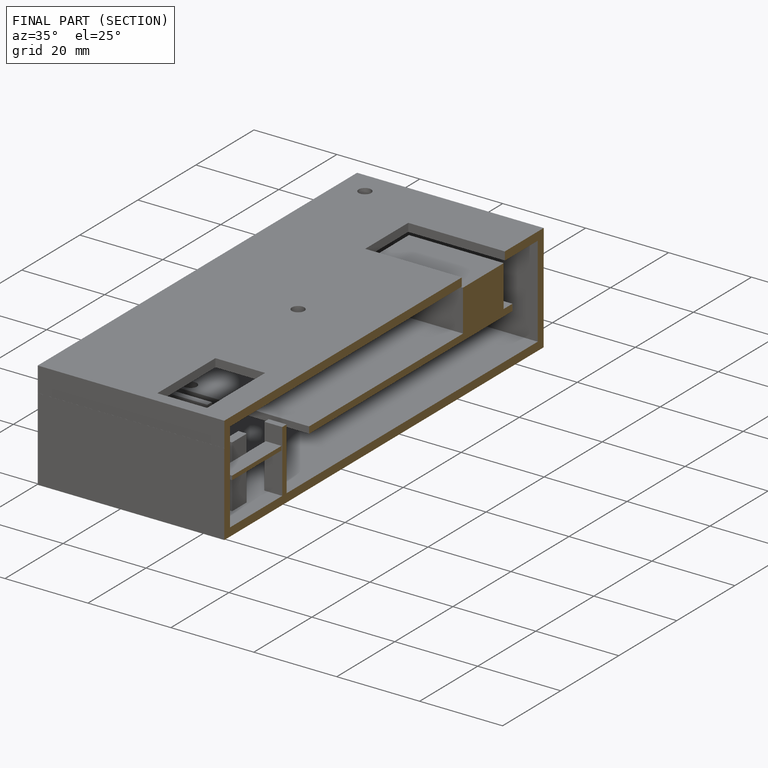
[diagram: finished part — half-section view (interior)]
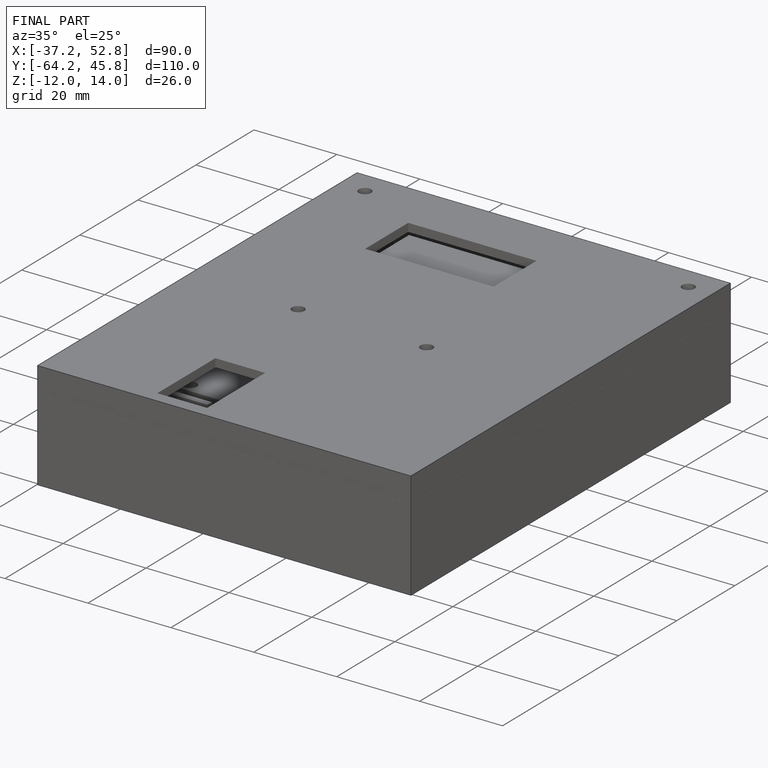
[diagram: finished part — iso view with bounding-box wireframe]
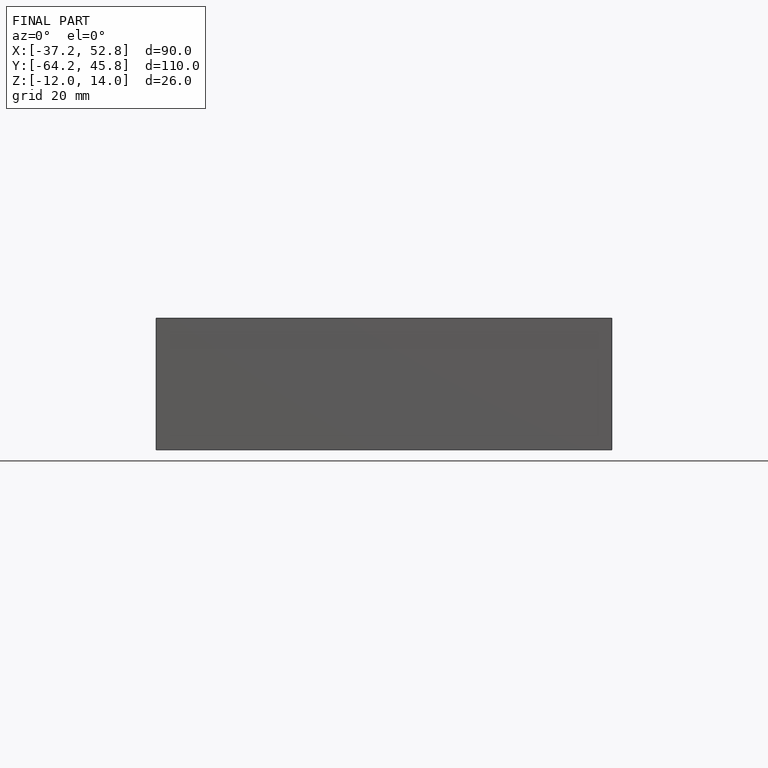
[diagram: finished part — front view with bounding-box wireframe]
